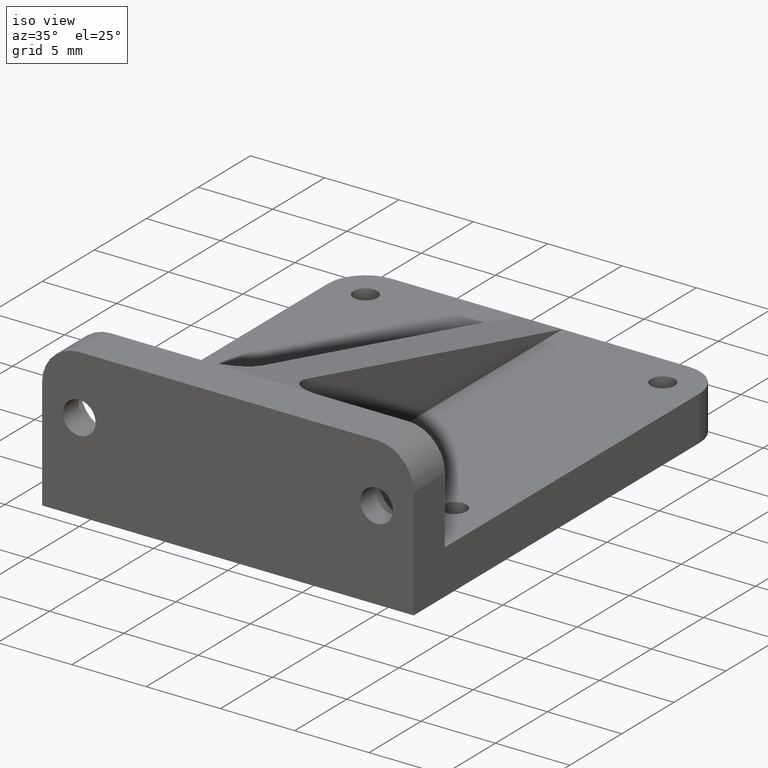
[diagram: clean part render]
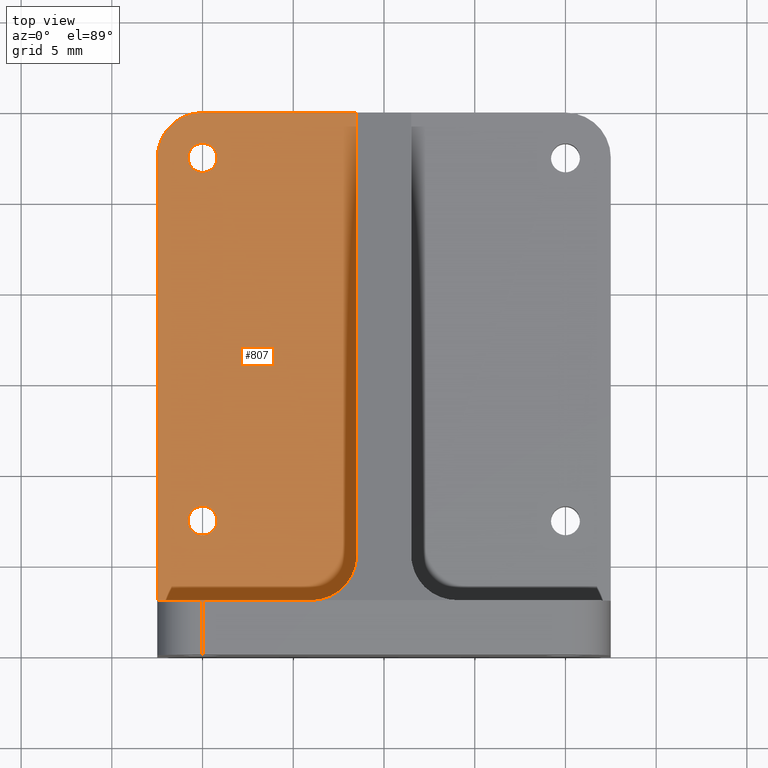
[diagram: tour spotlight — one face highlighted and labeled with its STEP entity id]
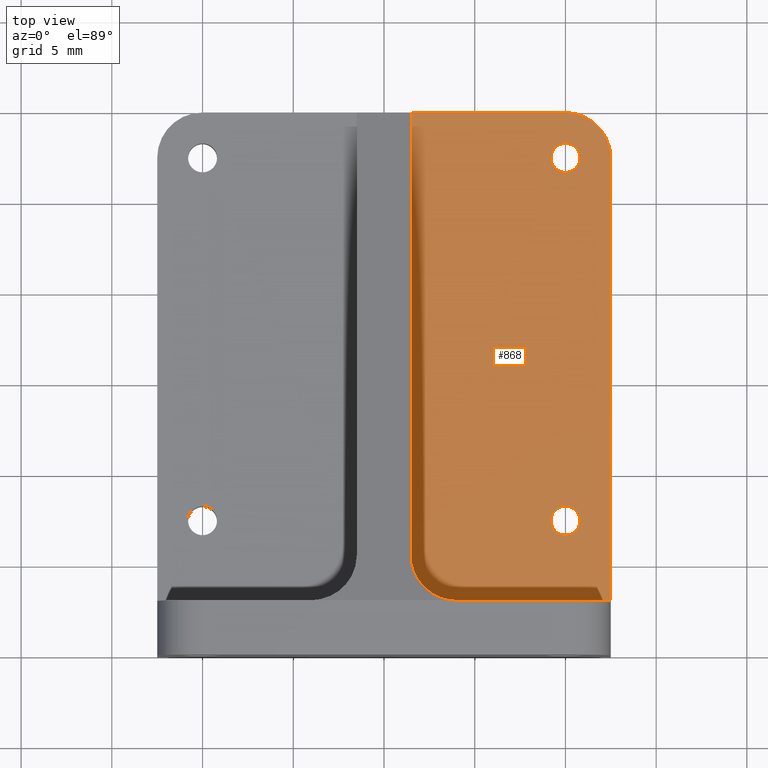
[diagram: tour spotlight — one face highlighted and labeled with its STEP entity id]
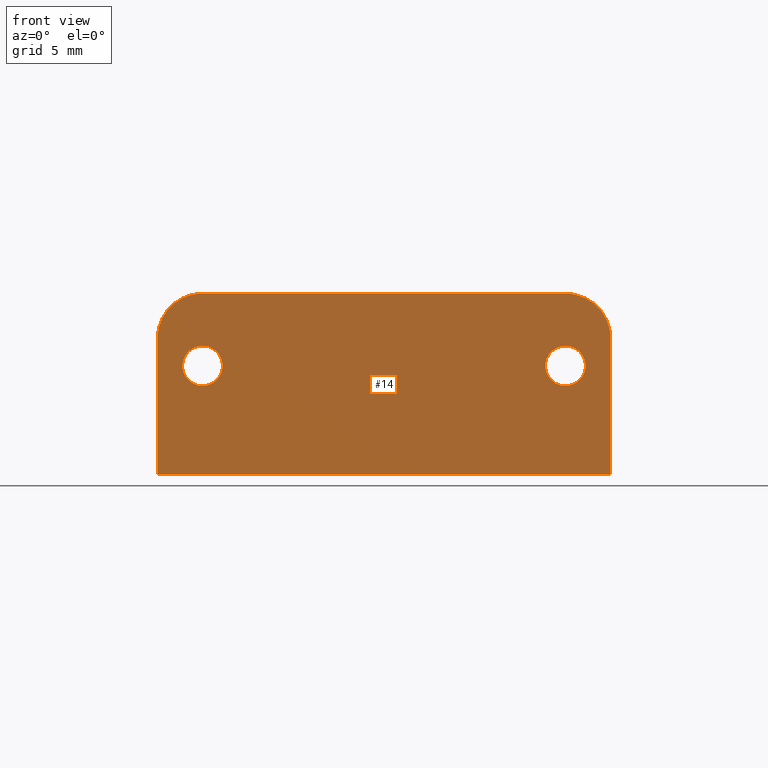
[diagram: tour spotlight — one face highlighted and labeled with its STEP entity id]
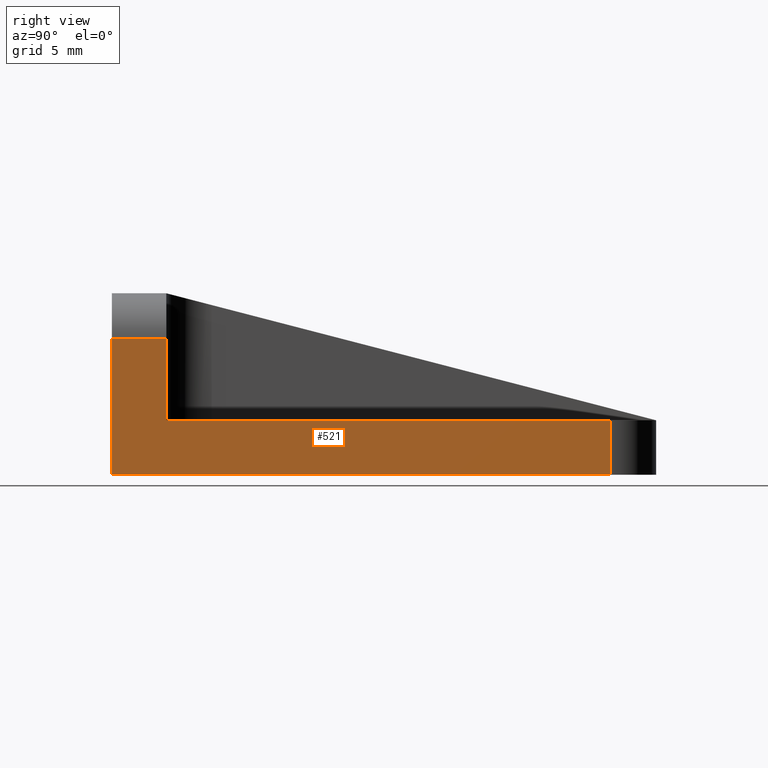
[diagram: tour spotlight — one face highlighted and labeled with its STEP entity id]
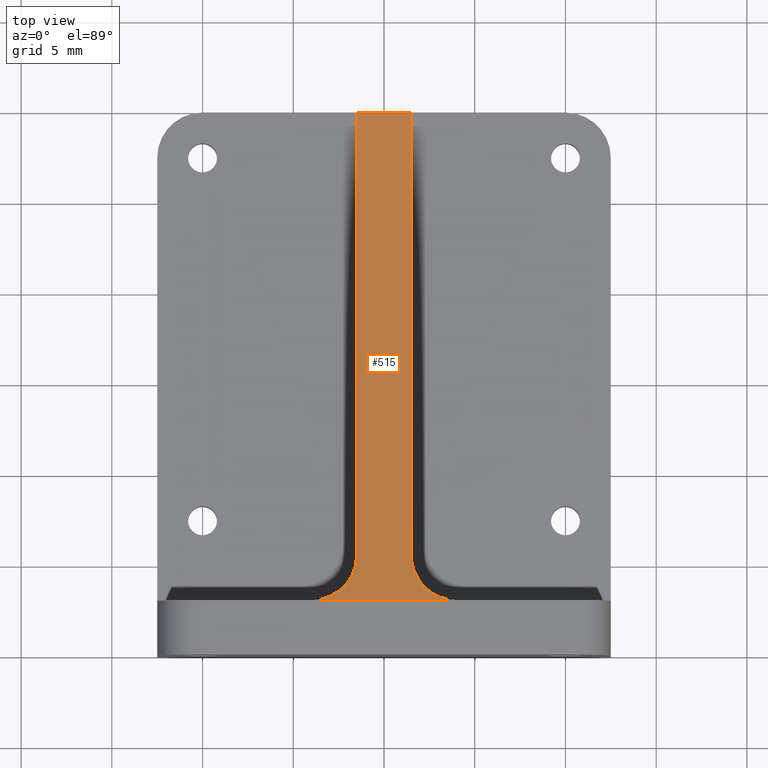
[diagram: tour spotlight — one face highlighted and labeled with its STEP entity id]
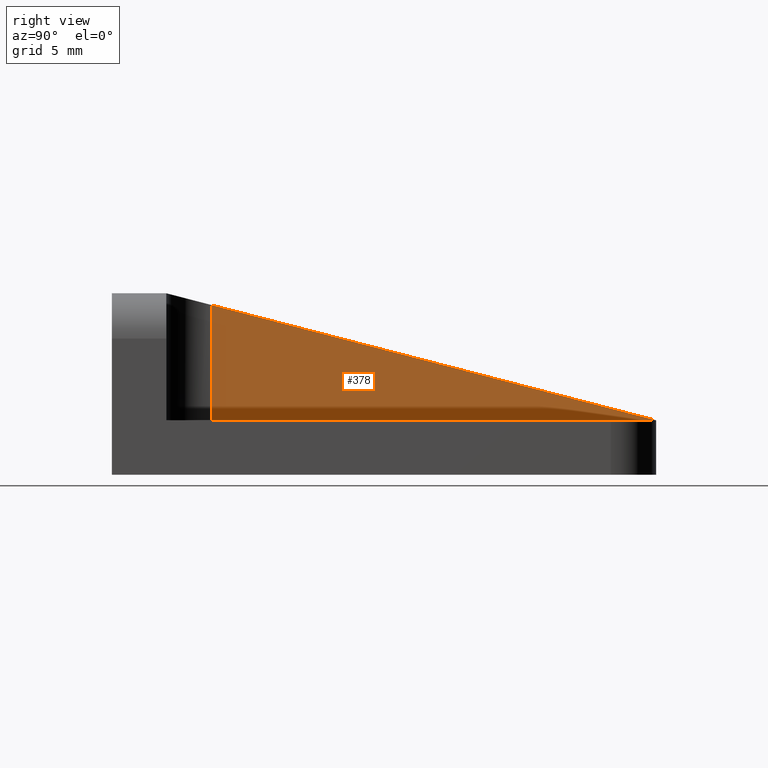
[diagram: tour spotlight — one face highlighted and labeled with its STEP entity id]
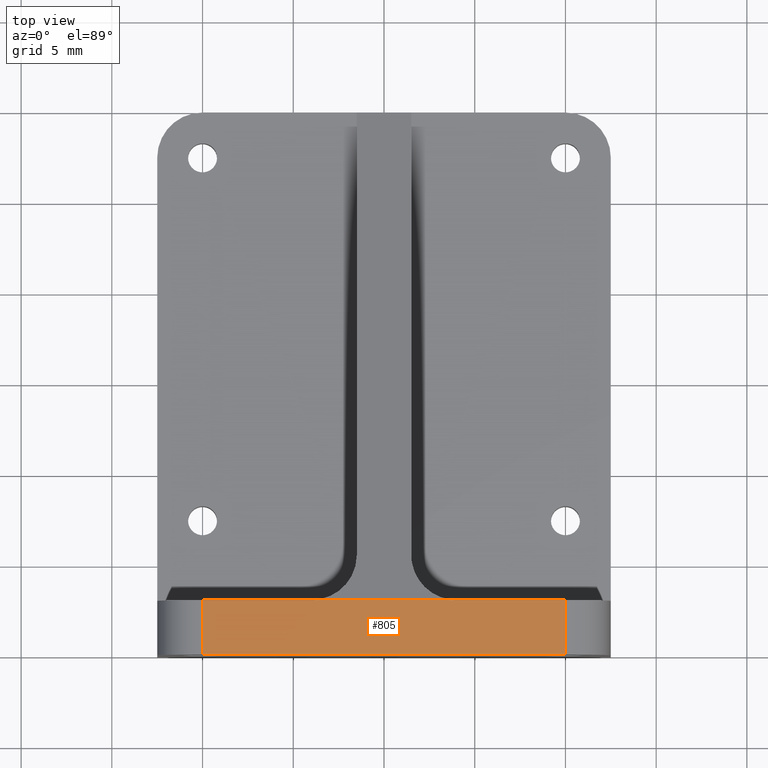
[diagram: tour spotlight — one face highlighted and labeled with its STEP entity id]
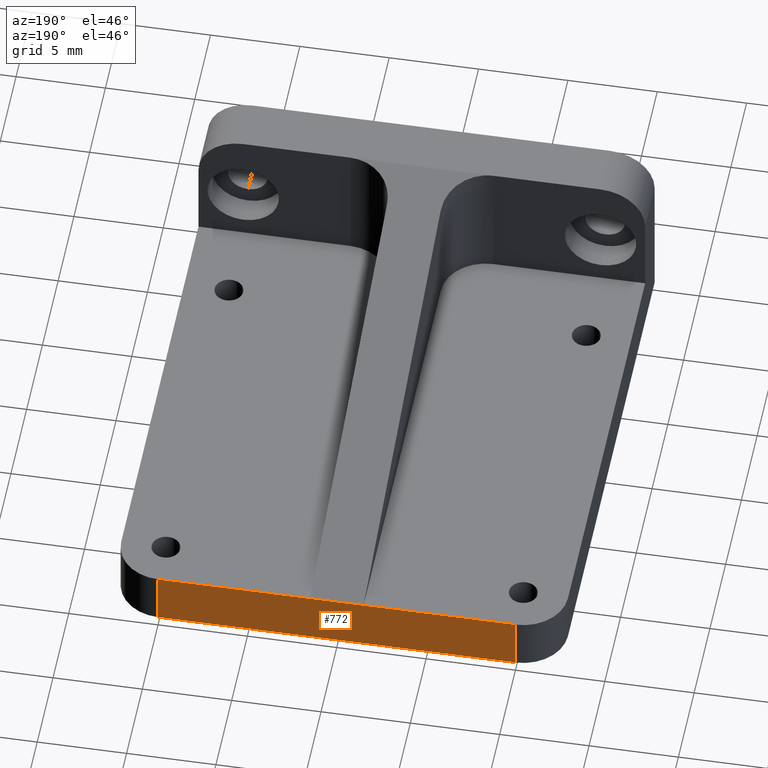
[diagram: tour spotlight — one face highlighted and labeled with its STEP entity id]
A machine part: a face-by-face anatomy tour. The part has 37 B-rep faces; the first image is the clean iso view, then the 8 largest visible faces are spotlighted one at a time (largest first), each with its STEP entity span.

Face 1 — top view, entity #807. In plain terms, the highlighted planar face has unit normal (0, 0, 1).
Definition (entity closure, byte-faithful):
#23 = CARTESIAN_POINT ( 'NONE',  ( -12.50000000000000000, 3.000000000000000000, 3.000000000000002665 ) ) ;
#26 = VECTOR ( 'NONE', #143, 1000.000000000000000 ) ;
#38 = CARTESIAN_POINT ( 'NONE',  ( -10.00000000000000000, 27.49999999999999645, 3.000000000000001332 ) ) ;
#111 = DIRECTION ( 'NONE',  ( 1.000000000000000000, 0.0000000000000000000, 0.0000000000000000000 ) ) ;
#128 = VERTEX_POINT ( 'NONE', #1005 ) ;
#129 = CARTESIAN_POINT ( 'NONE',  ( 12.50000000000000000, 0.0000000000000000000, 3.000000000000000000 ) ) ;
#132 = EDGE_CURVE ( 'NONE', #245, #944, #157, .T. ) ;
#143 = DIRECTION ( 'NONE',  ( 2.569960705150825398E-16, -1.000000000000000000, 0.0000000000000000000 ) ) ;
#157 = LINE ( 'NONE', #163, #26 ) ;
#163 = CARTESIAN_POINT ( 'NONE',  ( -1.499999999999997780, 3.000000000000000000, 3.000000000000002665 ) ) ;
#189 = EDGE_CURVE ( 'NONE', #128, #944, #1232, .T. ) ;
#191 = ORIENTED_EDGE ( 'NONE', *, *, #189, .T. ) ;
#202 = DIRECTION ( 'NONE',  ( -0.0000000000000000000, -0.0000000000000000000, 1.000000000000000000 ) ) ;
#205 = DIRECTION ( 'NONE',  ( -0.0000000000000000000, -0.0000000000000000000, 1.000000000000000000 ) ) ;
#206 = VERTEX_POINT ( 'NONE', #356 ) ;
#236 = CARTESIAN_POINT ( 'NONE',  ( -9.999999999999998224, 27.50000000000000000, 3.000000000000000000 ) ) ;
#237 = CARTESIAN_POINT ( 'NONE',  ( -10.79999999999998828, 7.499999999999996447, 3.000000000000001332 ) ) ;
#240 = VECTOR ( 'NONE', #857, 1000.000000000000000 ) ;
#244 = CARTESIAN_POINT ( 'NONE',  ( -1.500000000000004885, 30.00000000000000000, 3.000000000000002665 ) ) ;
#245 = VERTEX_POINT ( 'NONE', #244 ) ;
#251 = DIRECTION ( 'NONE',  ( 0.0000000000000000000, 0.0000000000000000000, 1.000000000000000000 ) ) ;
#253 = DIRECTION ( 'NONE',  ( 0.0000000000000000000, 0.0000000000000000000, 1.000000000000000000 ) ) ;
#304 = DIRECTION ( 'NONE',  ( 0.0000000000000000000, 1.000000000000000000, -0.0000000000000000000 ) ) ;
#311 = EDGE_LOOP ( 'NONE', ( #1093, #936, #461, #902, #191, #1140 ) ) ;
#356 = CARTESIAN_POINT ( 'NONE',  ( -9.999999999999998224, 30.00000000000000000, 3.000000000000002665 ) ) ;
#380 = VERTEX_POINT ( 'NONE', #776 ) ;
#388 = CIRCLE ( 'NONE', #608, 0.7999999999999882760 ) ;
#412 = VERTEX_POINT ( 'NONE', #613 ) ;
#425 = AXIS2_PLACEMENT_3D ( 'NONE', #236, #253, #819 ) ;
#434 = EDGE_CURVE ( 'NONE', #128, #380, #947, .T. ) ;
#436 = VERTEX_POINT ( 'NONE', #1239 ) ;
#438 = DIRECTION ( 'NONE',  ( 1.000000000000000000, 0.0000000000000000000, -0.0000000000000000000 ) ) ;
#443 = VERTEX_POINT ( 'NONE', #743 ) ;
#461 = ORIENTED_EDGE ( 'NONE', *, *, #676, .F. ) ;
#468 = VERTEX_POINT ( 'NONE', #576 ) ;
#478 = CARTESIAN_POINT ( 'NONE',  ( -12.50000000000000000, 3.000000000000000000, 3.000000000000002665 ) ) ;
#493 = AXIS2_PLACEMENT_3D ( 'NONE', #38, #603, #111 ) ;
#509 = LINE ( 'NONE', #798, #1094 ) ;
#512 = EDGE_CURVE ( 'NONE', #206, #436, #829, .T. ) ;
#529 = AXIS2_PLACEMENT_3D ( 'NONE', #1123, #251, #831 ) ;
#552 = FACE_OUTER_BOUND ( 'NONE', #311, .T. ) ;
#576 = CARTESIAN_POINT ( 'NONE',  ( -9.200000000000011724, 7.499999999999996447, 3.000000000000001332 ) ) ;
#585 = EDGE_CURVE ( 'NONE', #839, #468, #873, .T. ) ;
#594 = DIRECTION ( 'NONE',  ( 1.000000000000000000, 0.0000000000000000000, 0.0000000000000000000 ) ) ;
#603 = DIRECTION ( 'NONE',  ( -0.0000000000000000000, -0.0000000000000000000, 1.000000000000000000 ) ) ;
#608 = AXIS2_PLACEMENT_3D ( 'NONE', #973, #205, #594 ) ;
#613 = CARTESIAN_POINT ( 'NONE',  ( -9.200000000000011724, 27.49999999999999645, 3.000000000000001332 ) ) ;
#625 = AXIS2_PLACEMENT_3D ( 'NONE', #775, #202, #1173 ) ;
#636 = EDGE_CURVE ( 'NONE', #468, #839, #1167, .T. ) ;
#648 = EDGE_CURVE ( 'NONE', #412, #443, #788, .T. ) ;
#669 = ORIENTED_EDGE ( 'NONE', *, *, #585, .F. ) ;
#676 = EDGE_CURVE ( 'NONE', #380, #436, #1075, .T. ) ;
#682 = AXIS2_PLACEMENT_3D ( 'NONE', #989, #714, #1053 ) ;
#711 = PLANE ( 'NONE',  #1072 ) ;
#714 = DIRECTION ( 'NONE',  ( -0.0000000000000000000, -0.0000000000000000000, 1.000000000000000000 ) ) ;
#743 = CARTESIAN_POINT ( 'NONE',  ( -10.79999999999998828, 27.49999999999999645, 3.000000000000001332 ) ) ;
#761 = CARTESIAN_POINT ( 'NONE',  ( -1.499999999999998446, 5.500000000000000888, 3.000000000000002665 ) ) ;
#775 = CARTESIAN_POINT ( 'NONE',  ( -10.00000000000000000, 7.499999999999996447, 3.000000000000001332 ) ) ;
#776 = CARTESIAN_POINT ( 'NONE',  ( -12.50000000000000000, 3.000000000000000000, 3.000000000000002665 ) ) ;
#788 = CIRCLE ( 'NONE', #493, 0.7999999999999882760 ) ;
#798 = CARTESIAN_POINT ( 'NONE',  ( -12.50000000000000000, 30.00000000000000000, 3.000000000000002665 ) ) ;
#800 = ORIENTED_EDGE ( 'NONE', *, *, #636, .F. ) ;
#807 = ADVANCED_FACE ( 'NONE', ( #1100, #821, #552 ), #711, .T. ) ;
#819 = DIRECTION ( 'NONE',  ( 1.000000000000000000, 0.0000000000000000000, 0.0000000000000000000 ) ) ;
#821 = FACE_BOUND ( 'NONE', #1036, .T. ) ;
#829 = CIRCLE ( 'NONE', #425, 2.500000000000000444 ) ;
#831 = DIRECTION ( 'NONE',  ( 1.000000000000000000, 0.0000000000000000000, 0.0000000000000000000 ) ) ;
#839 = VERTEX_POINT ( 'NONE', #237 ) ;
#857 = DIRECTION ( 'NONE',  ( -1.000000000000000000, 0.0000000000000000000, 0.0000000000000000000 ) ) ;
#873 = CIRCLE ( 'NONE', #682, 0.7999999999999882760 ) ;
#902 = ORIENTED_EDGE ( 'NONE', *, *, #434, .F. ) ;
#931 = DIRECTION ( 'NONE',  ( 0.0000000000000000000, 0.0000000000000000000, 1.000000000000000000 ) ) ;
#936 = ORIENTED_EDGE ( 'NONE', *, *, #512, .T. ) ;
#944 = VERTEX_POINT ( 'NONE', #761 ) ;
#947 = LINE ( 'NONE', #478, #240 ) ;
#973 = CARTESIAN_POINT ( 'NONE',  ( -10.00000000000000000, 27.49999999999999645, 3.000000000000001332 ) ) ;
#983 = VECTOR ( 'NONE', #304, 1000.000000000000000 ) ;
#989 = CARTESIAN_POINT ( 'NONE',  ( -10.00000000000000000, 7.499999999999996447, 3.000000000000001332 ) ) ;
#996 = DIRECTION ( 'NONE',  ( 1.000000000000000000, 0.0000000000000000000, -0.0000000000000000000 ) ) ;
#1005 = CARTESIAN_POINT ( 'NONE',  ( -4.000000000000000000, 3.000000000000000000, 3.000000000000002665 ) ) ;
#1036 = EDGE_LOOP ( 'NONE', ( #800, #669 ) ) ;
#1053 = DIRECTION ( 'NONE',  ( 1.000000000000000000, 0.0000000000000000000, 0.0000000000000000000 ) ) ;
#1072 = AXIS2_PLACEMENT_3D ( 'NONE', #129, #931, #438 ) ;
#1075 = LINE ( 'NONE', #23, #983 ) ;
#1093 = ORIENTED_EDGE ( 'NONE', *, *, #1163, .F. ) ;
#1094 = VECTOR ( 'NONE', #996, 1000.000000000000000 ) ;
#1100 = FACE_BOUND ( 'NONE', #1242, .T. ) ;
#1116 = ORIENTED_EDGE ( 'NONE', *, *, #1161, .F. ) ;
#1123 = CARTESIAN_POINT ( 'NONE',  ( -3.999999999999999112, 5.500000000000000000, 3.000000000000002665 ) ) ;
#1140 = ORIENTED_EDGE ( 'NONE', *, *, #132, .F. ) ;
#1161 = EDGE_CURVE ( 'NONE', #443, #412, #388, .T. ) ;
#1163 = EDGE_CURVE ( 'NONE', #206, #245, #509, .T. ) ;
#1167 = CIRCLE ( 'NONE', #625, 0.7999999999999882760 ) ;
#1173 = DIRECTION ( 'NONE',  ( 1.000000000000000000, 0.0000000000000000000, 0.0000000000000000000 ) ) ;
#1181 = ORIENTED_EDGE ( 'NONE', *, *, #648, .F. ) ;
#1232 = CIRCLE ( 'NONE', #529, 2.500000000000000000 ) ;
#1239 = CARTESIAN_POINT ( 'NONE',  ( -12.50000000000000000, 27.50000000000000000, 3.000000000000002665 ) ) ;
#1242 = EDGE_LOOP ( 'NONE', ( #1181, #1116 ) ) ;

Face 2 — top view, entity #868. In plain terms, the highlighted planar face has unit normal (0, 0, 1).
Definition (entity closure, byte-faithful):
#12 = AXIS2_PLACEMENT_3D ( 'NONE', #959, #360, #489 ) ;
#18 = CARTESIAN_POINT ( 'NONE',  ( 1.500000000000004885, 30.00000000000000000, 3.000000000000002665 ) ) ;
#57 = CIRCLE ( 'NONE', #878, 2.500000000000000444 ) ;
#58 = ORIENTED_EDGE ( 'NONE', *, *, #1159, .F. ) ;
#67 = VECTOR ( 'NONE', #683, 1000.000000000000000 ) ;
#102 = CARTESIAN_POINT ( 'NONE',  ( 12.50000000000000000, 30.00000000000000000, 3.000000000000000000 ) ) ;
#118 = AXIS2_PLACEMENT_3D ( 'NONE', #342, #915, #1219 ) ;
#155 = ORIENTED_EDGE ( 'NONE', *, *, #768, .T. ) ;
#172 = ORIENTED_EDGE ( 'NONE', *, *, #500, .F. ) ;
#173 = CIRCLE ( 'NONE', #211, 0.7999999999999882760 ) ;
#204 = CARTESIAN_POINT ( 'NONE',  ( 1.500000000000004441, 3.000000000000000444, 3.000000000000002665 ) ) ;
#211 = AXIS2_PLACEMENT_3D ( 'NONE', #1204, #719, #1210 ) ;
#233 = CARTESIAN_POINT ( 'NONE',  ( 10.00000000000000000, 27.50000000000000000, 3.000000000000001332 ) ) ;
#234 = VECTOR ( 'NONE', #679, 1000.000000000000000 ) ;
#254 = VERTEX_POINT ( 'NONE', #561 ) ;
#259 = VERTEX_POINT ( 'NONE', #849 ) ;
#261 = CARTESIAN_POINT ( 'NONE',  ( 12.50000000000000000, 0.0000000000000000000, 3.000000000000000000 ) ) ;
#276 = ORIENTED_EDGE ( 'NONE', *, *, #823, .F. ) ;
#286 = CIRCLE ( 'NONE', #1153, 0.7999999999999882760 ) ;
#301 = LINE ( 'NONE', #204, #67 ) ;
#315 = EDGE_CURVE ( 'NONE', #393, #726, #421, .T. ) ;
#323 = DIRECTION ( 'NONE',  ( -0.0000000000000000000, -1.000000000000000000, 0.0000000000000000000 ) ) ;
#336 = CARTESIAN_POINT ( 'NONE',  ( 10.00000000000000000, 27.50000000000000000, 3.000000000000000000 ) ) ;
#342 = CARTESIAN_POINT ( 'NONE',  ( 10.00000000000000711, 7.499999999999999112, 3.000000000000001332 ) ) ;
#360 = DIRECTION ( 'NONE',  ( 0.0000000000000000000, 0.0000000000000000000, 1.000000000000000000 ) ) ;
#363 = EDGE_CURVE ( 'NONE', #254, #1137, #301, .T. ) ;
#364 = ORIENTED_EDGE ( 'NONE', *, *, #1230, .F. ) ;
#366 = FACE_BOUND ( 'NONE', #863, .T. ) ;
#368 = EDGE_CURVE ( 'NONE', #1201, #1220, #1085, .T. ) ;
#372 = VERTEX_POINT ( 'NONE', #1002 ) ;
#393 = VERTEX_POINT ( 'NONE', #688 ) ;
#419 = ORIENTED_EDGE ( 'NONE', *, *, #1052, .T. ) ;
#420 = AXIS2_PLACEMENT_3D ( 'NONE', #261, #1231, #462 ) ;
#421 = LINE ( 'NONE', #1164, #981 ) ;
#441 = CARTESIAN_POINT ( 'NONE',  ( 10.79999999999998828, 27.50000000000000000, 3.000000000000001332 ) ) ;
#444 = DIRECTION ( 'NONE',  ( 1.000000000000000000, 0.0000000000000000000, 0.0000000000000000000 ) ) ;
#462 = DIRECTION ( 'NONE',  ( 1.000000000000000000, 0.0000000000000000000, -0.0000000000000000000 ) ) ;
#483 = ORIENTED_EDGE ( 'NONE', *, *, #363, .F. ) ;
#484 = FACE_BOUND ( 'NONE', #557, .T. ) ;
#489 = DIRECTION ( 'NONE',  ( 1.000000000000000000, 0.0000000000000000000, 0.0000000000000000000 ) ) ;
#500 = EDGE_CURVE ( 'NONE', #259, #1225, #508, .T. ) ;
#501 = CARTESIAN_POINT ( 'NONE',  ( 10.00000000000000000, 30.00000000000000000, 3.000000000000000000 ) ) ;
#504 = CARTESIAN_POINT ( 'NONE',  ( 10.00000000000000000, 27.50000000000000000, 3.000000000000001332 ) ) ;
#508 = CIRCLE ( 'NONE', #118, 0.7999999999999882760 ) ;
#525 = EDGE_LOOP ( 'NONE', ( #1049, #155, #419, #483, #1208, #364 ) ) ;
#526 = EDGE_CURVE ( 'NONE', #254, #372, #1152, .T. ) ;
#530 = CARTESIAN_POINT ( 'NONE',  ( 10.79999999999999538, 7.499999999999999112, 3.000000000000001332 ) ) ;
#557 = EDGE_LOOP ( 'NONE', ( #844, #58 ) ) ;
#561 = CARTESIAN_POINT ( 'NONE',  ( 1.500000000000004441, 5.500000000000000000, 3.000000000000002665 ) ) ;
#587 = DIRECTION ( 'NONE',  ( 1.000000000000000000, 0.0000000000000000000, 0.0000000000000000000 ) ) ;
#621 = DIRECTION ( 'NONE',  ( 1.000000000000000000, 0.0000000000000000000, 0.0000000000000000000 ) ) ;
#624 = CARTESIAN_POINT ( 'NONE',  ( 12.50000000000000000, 3.000000000000000000, 3.000000000000000000 ) ) ;
#679 = DIRECTION ( 'NONE',  ( -1.000000000000000000, -0.0000000000000000000, -0.0000000000000000000 ) ) ;
#683 = DIRECTION ( 'NONE',  ( 1.606225440719265874E-17, 1.000000000000000000, -0.0000000000000000000 ) ) ;
#688 = CARTESIAN_POINT ( 'NONE',  ( 12.50000000000000000, 27.50000000000000000, 3.000000000000002665 ) ) ;
#719 = DIRECTION ( 'NONE',  ( -0.0000000000000000000, -0.0000000000000000000, 1.000000000000000000 ) ) ;
#726 = VERTEX_POINT ( 'NONE', #624 ) ;
#734 = DIRECTION ( 'NONE',  ( 0.0000000000000000000, 0.0000000000000000000, 1.000000000000000000 ) ) ;
#740 = VECTOR ( 'NONE', #1217, 1000.000000000000000 ) ;
#768 = EDGE_CURVE ( 'NONE', #393, #1040, #57, .T. ) ;
#804 = AXIS2_PLACEMENT_3D ( 'NONE', #233, #1110, #621 ) ;
#823 = EDGE_CURVE ( 'NONE', #1225, #259, #173, .T. ) ;
#844 = ORIENTED_EDGE ( 'NONE', *, *, #368, .F. ) ;
#849 = CARTESIAN_POINT ( 'NONE',  ( 9.200000000000018829, 7.499999999999999112, 3.000000000000001332 ) ) ;
#863 = EDGE_LOOP ( 'NONE', ( #276, #172 ) ) ;
#868 = ADVANCED_FACE ( 'NONE', ( #366, #484, #1030 ), #1038, .T. ) ;
#878 = AXIS2_PLACEMENT_3D ( 'NONE', #336, #734, #444 ) ;
#883 = DIRECTION ( 'NONE',  ( -0.0000000000000000000, -0.0000000000000000000, 1.000000000000000000 ) ) ;
#907 = CARTESIAN_POINT ( 'NONE',  ( 12.50000000000000000, 3.000000000000000000, 3.000000000000002665 ) ) ;
#915 = DIRECTION ( 'NONE',  ( -0.0000000000000000000, -0.0000000000000000000, 1.000000000000000000 ) ) ;
#959 = CARTESIAN_POINT ( 'NONE',  ( 4.000000000000003553, 5.500000000000000000, 3.000000000000002665 ) ) ;
#981 = VECTOR ( 'NONE', #323, 1000.000000000000000 ) ;
#1002 = CARTESIAN_POINT ( 'NONE',  ( 4.000000000000003553, 3.000000000000000444, 3.000000000000002665 ) ) ;
#1030 = FACE_OUTER_BOUND ( 'NONE', #525, .T. ) ;
#1038 = PLANE ( 'NONE',  #420 ) ;
#1040 = VERTEX_POINT ( 'NONE', #501 ) ;
#1049 = ORIENTED_EDGE ( 'NONE', *, *, #315, .F. ) ;
#1052 = EDGE_CURVE ( 'NONE', #1040, #1137, #1157, .T. ) ;
#1085 = CIRCLE ( 'NONE', #804, 0.7999999999999882760 ) ;
#1096 = CARTESIAN_POINT ( 'NONE',  ( 9.200000000000011724, 27.50000000000000000, 3.000000000000001332 ) ) ;
#1110 = DIRECTION ( 'NONE',  ( -0.0000000000000000000, -0.0000000000000000000, 1.000000000000000000 ) ) ;
#1137 = VERTEX_POINT ( 'NONE', #18 ) ;
#1152 = CIRCLE ( 'NONE', #12, 2.500000000000000444 ) ;
#1153 = AXIS2_PLACEMENT_3D ( 'NONE', #504, #883, #587 ) ;
#1157 = LINE ( 'NONE', #102, #234 ) ;
#1159 = EDGE_CURVE ( 'NONE', #1220, #1201, #286, .T. ) ;
#1164 = CARTESIAN_POINT ( 'NONE',  ( 12.50000000000000000, 3.000000000000000000, 3.000000000000002665 ) ) ;
#1193 = LINE ( 'NONE', #907, #740 ) ;
#1201 = VERTEX_POINT ( 'NONE', #441 ) ;
#1204 = CARTESIAN_POINT ( 'NONE',  ( 10.00000000000000711, 7.499999999999999112, 3.000000000000001332 ) ) ;
#1208 = ORIENTED_EDGE ( 'NONE', *, *, #526, .T. ) ;
#1210 = DIRECTION ( 'NONE',  ( 1.000000000000000000, 0.0000000000000000000, 0.0000000000000000000 ) ) ;
#1217 = DIRECTION ( 'NONE',  ( -1.000000000000000000, 3.942553354492745133E-17, 0.0000000000000000000 ) ) ;
#1219 = DIRECTION ( 'NONE',  ( 1.000000000000000000, 0.0000000000000000000, 0.0000000000000000000 ) ) ;
#1220 = VERTEX_POINT ( 'NONE', #1096 ) ;
#1225 = VERTEX_POINT ( 'NONE', #530 ) ;
#1230 = EDGE_CURVE ( 'NONE', #726, #372, #1193, .T. ) ;
#1231 = DIRECTION ( 'NONE',  ( 0.0000000000000000000, 0.0000000000000000000, 1.000000000000000000 ) ) ;

Face 3 — front view, entity #14. In plain terms, the highlighted planar face has unit normal (0, 1, 0).
Definition (entity closure, byte-faithful):
#13 = VECTOR ( 'NONE', #796, 1000.000000000000000 ) ;
#14 = ADVANCED_FACE ( 'NONE', ( #1190, #1087, #581 ), #487, .F. ) ;
#15 = VERTEX_POINT ( 'NONE', #605 ) ;
#24 = VERTEX_POINT ( 'NONE', #546 ) ;
#25 = CARTESIAN_POINT ( 'NONE',  ( -10.00000000000000000, 0.0000000000000000000, 6.000000000000000000 ) ) ;
#51 = ORIENTED_EDGE ( 'NONE', *, *, #869, .T. ) ;
#65 = DIRECTION ( 'NONE',  ( 0.0000000000000000000, 0.0000000000000000000, 1.000000000000000000 ) ) ;
#72 = DIRECTION ( 'NONE',  ( -0.0000000000000000000, -1.000000000000000000, -0.0000000000000000000 ) ) ;
#108 = CIRCLE ( 'NONE', #229, 2.500000000000000444 ) ;
#110 = DIRECTION ( 'NONE',  ( 0.0000000000000000000, 0.0000000000000000000, 1.000000000000000000 ) ) ;
#145 = VERTEX_POINT ( 'NONE', #1035 ) ;
#152 = DIRECTION ( 'NONE',  ( 0.0000000000000000000, 0.0000000000000000000, 1.000000000000000000 ) ) ;
#162 = AXIS2_PLACEMENT_3D ( 'NONE', #1070, #881, #305 ) ;
#186 = CARTESIAN_POINT ( 'NONE',  ( -10.00000000000000000, 0.0000000000000000000, 6.000000000000000000 ) ) ;
#188 = AXIS2_PLACEMENT_3D ( 'NONE', #453, #524, #910 ) ;
#207 = CARTESIAN_POINT ( 'NONE',  ( 12.50000000000000000, 0.0000000000000000000, 7.500000000000000000 ) ) ;
#217 = AXIS2_PLACEMENT_3D ( 'NONE', #186, #872, #841 ) ;
#229 = AXIS2_PLACEMENT_3D ( 'NONE', #320, #72, #65 ) ;
#238 = VECTOR ( 'NONE', #643, 1000.000000000000000 ) ;
#243 = EDGE_CURVE ( 'NONE', #982, #1129, #717, .T. ) ;
#288 = ORIENTED_EDGE ( 'NONE', *, *, #1151, .T. ) ;
#295 = LINE ( 'NONE', #591, #13 ) ;
#305 = DIRECTION ( 'NONE',  ( 0.0000000000000000000, 0.0000000000000000000, 1.000000000000000000 ) ) ;
#313 = CARTESIAN_POINT ( 'NONE',  ( 10.00000000000000000, 0.0000000000000000000, 7.500000000000000000 ) ) ;
#320 = CARTESIAN_POINT ( 'NONE',  ( -9.999999999999998224, 0.0000000000000000000, 7.500000000000000000 ) ) ;
#334 = ORIENTED_EDGE ( 'NONE', *, *, #732, .T. ) ;
#373 = ORIENTED_EDGE ( 'NONE', *, *, #243, .T. ) ;
#387 = EDGE_CURVE ( 'NONE', #145, #430, #1003, .T. ) ;
#392 = CARTESIAN_POINT ( 'NONE',  ( 12.50000000000000000, 0.0000000000000000000, 0.0000000000000000000 ) ) ;
#400 = AXIS2_PLACEMENT_3D ( 'NONE', #25, #675, #110 ) ;
#403 = LINE ( 'NONE', #392, #573 ) ;
#409 = CIRCLE ( 'NONE', #188, 1.099999999999999423 ) ;
#418 = VERTEX_POINT ( 'NONE', #1009 ) ;
#430 = VERTEX_POINT ( 'NONE', #1016 ) ;
#453 = CARTESIAN_POINT ( 'NONE',  ( 10.00000000000000000, 0.0000000000000000000, 5.999999999999997335 ) ) ;
#487 = PLANE ( 'NONE',  #905 ) ;
#495 = EDGE_LOOP ( 'NONE', ( #904, #334 ) ) ;
#517 = ORIENTED_EDGE ( 'NONE', *, *, #686, .F. ) ;
#524 = DIRECTION ( 'NONE',  ( 0.0000000000000000000, 1.000000000000000000, 0.0000000000000000000 ) ) ;
#546 = CARTESIAN_POINT ( 'NONE',  ( -12.50000000000000000, 0.0000000000000000000, 0.0000000000000000000 ) ) ;
#547 = VECTOR ( 'NONE', #958, 1000.000000000000000 ) ;
#553 = EDGE_CURVE ( 'NONE', #616, #418, #1063, .T. ) ;
#562 = ORIENTED_EDGE ( 'NONE', *, *, #553, .T. ) ;
#564 = LINE ( 'NONE', #1238, #547 ) ;
#573 = VECTOR ( 'NONE', #889, 1000.000000000000000 ) ;
#581 = FACE_OUTER_BOUND ( 'NONE', #1029, .T. ) ;
#591 = CARTESIAN_POINT ( 'NONE',  ( 12.50000000000000000, 0.0000000000000000000, 0.0000000000000000000 ) ) ;
#597 = DIRECTION ( 'NONE',  ( 0.0000000000000000000, 1.000000000000000000, 0.0000000000000000000 ) ) ;
#605 = CARTESIAN_POINT ( 'NONE',  ( 12.50000000000000000, 0.0000000000000000000, 0.0000000000000000000 ) ) ;
#616 = VERTEX_POINT ( 'NONE', #1069 ) ;
#643 = DIRECTION ( 'NONE',  ( -1.000000000000000000, -0.0000000000000000000, -0.0000000000000000000 ) ) ;
#645 = VERTEX_POINT ( 'NONE', #884 ) ;
#661 = VERTEX_POINT ( 'NONE', #207 ) ;
#667 = EDGE_CURVE ( 'NONE', #661, #15, #403, .T. ) ;
#675 = DIRECTION ( 'NONE',  ( 0.0000000000000000000, 1.000000000000000000, 0.0000000000000000000 ) ) ;
#686 = EDGE_CURVE ( 'NONE', #15, #24, #295, .T. ) ;
#698 = DIRECTION ( 'NONE',  ( -0.0000000000000000000, -1.000000000000000000, -0.0000000000000000000 ) ) ;
#710 = EDGE_CURVE ( 'NONE', #661, #982, #1155, .T. ) ;
#717 = LINE ( 'NONE', #1104, #238 ) ;
#732 = EDGE_CURVE ( 'NONE', #430, #145, #409, .T. ) ;
#750 = EDGE_CURVE ( 'NONE', #1129, #645, #108, .T. ) ;
#766 = AXIS2_PLACEMENT_3D ( 'NONE', #313, #698, #152 ) ;
#796 = DIRECTION ( 'NONE',  ( -1.000000000000000000, -0.0000000000000000000, -0.0000000000000000000 ) ) ;
#809 = ORIENTED_EDGE ( 'NONE', *, *, #710, .T. ) ;
#841 = DIRECTION ( 'NONE',  ( 0.0000000000000000000, 0.0000000000000000000, 1.000000000000000000 ) ) ;
#869 = EDGE_CURVE ( 'NONE', #645, #24, #564, .T. ) ;
#870 = DIRECTION ( 'NONE',  ( 0.0000000000000000000, -0.0000000000000000000, 1.000000000000000000 ) ) ;
#872 = DIRECTION ( 'NONE',  ( 0.0000000000000000000, 1.000000000000000000, 0.0000000000000000000 ) ) ;
#881 = DIRECTION ( 'NONE',  ( 0.0000000000000000000, 1.000000000000000000, 0.0000000000000000000 ) ) ;
#884 = CARTESIAN_POINT ( 'NONE',  ( -12.50000000000000000, 0.0000000000000000000, 7.500000000000000000 ) ) ;
#889 = DIRECTION ( 'NONE',  ( -0.0000000000000000000, -0.0000000000000000000, -1.000000000000000000 ) ) ;
#904 = ORIENTED_EDGE ( 'NONE', *, *, #387, .T. ) ;
#905 = AXIS2_PLACEMENT_3D ( 'NONE', #1056, #597, #870 ) ;
#910 = DIRECTION ( 'NONE',  ( 0.0000000000000000000, 0.0000000000000000000, 1.000000000000000000 ) ) ;
#928 = EDGE_LOOP ( 'NONE', ( #288, #562 ) ) ;
#958 = DIRECTION ( 'NONE',  ( -0.0000000000000000000, -0.0000000000000000000, -1.000000000000000000 ) ) ;
#970 = CIRCLE ( 'NONE', #400, 1.099999999999999423 ) ;
#976 = CARTESIAN_POINT ( 'NONE',  ( -9.999999999999998224, 0.0000000000000000000, 10.00000000000000000 ) ) ;
#982 = VERTEX_POINT ( 'NONE', #1146 ) ;
#1003 = CIRCLE ( 'NONE', #162, 1.099999999999999423 ) ;
#1009 = CARTESIAN_POINT ( 'NONE',  ( -10.00000000000000000, 0.0000000000000000000, 7.099999999999999645 ) ) ;
#1016 = CARTESIAN_POINT ( 'NONE',  ( 10.00000000000000000, 0.0000000000000000000, 4.899999999999997691 ) ) ;
#1018 = ORIENTED_EDGE ( 'NONE', *, *, #667, .F. ) ;
#1029 = EDGE_LOOP ( 'NONE', ( #1018, #809, #373, #1077, #51, #517 ) ) ;
#1035 = CARTESIAN_POINT ( 'NONE',  ( 10.00000000000000000, 0.0000000000000000000, 7.099999999999996980 ) ) ;
#1056 = CARTESIAN_POINT ( 'NONE',  ( 12.50000000000000000, 0.0000000000000000000, 0.0000000000000000000 ) ) ;
#1063 = CIRCLE ( 'NONE', #217, 1.099999999999999423 ) ;
#1069 = CARTESIAN_POINT ( 'NONE',  ( -10.00000000000000000, 0.0000000000000000000, 4.900000000000000355 ) ) ;
#1070 = CARTESIAN_POINT ( 'NONE',  ( 10.00000000000000000, 0.0000000000000000000, 5.999999999999997335 ) ) ;
#1077 = ORIENTED_EDGE ( 'NONE', *, *, #750, .T. ) ;
#1087 = FACE_BOUND ( 'NONE', #495, .T. ) ;
#1104 = CARTESIAN_POINT ( 'NONE',  ( 12.50000000000000000, 0.0000000000000000000, 10.00000000000000000 ) ) ;
#1129 = VERTEX_POINT ( 'NONE', #976 ) ;
#1146 = CARTESIAN_POINT ( 'NONE',  ( 10.00000000000000000, 0.0000000000000000000, 10.00000000000000000 ) ) ;
#1151 = EDGE_CURVE ( 'NONE', #418, #616, #970, .T. ) ;
#1155 = CIRCLE ( 'NONE', #766, 2.500000000000000444 ) ;
#1190 = FACE_BOUND ( 'NONE', #928, .T. ) ;
#1238 = CARTESIAN_POINT ( 'NONE',  ( -12.50000000000000000, 0.0000000000000000000, 0.0000000000000000000 ) ) ;

Face 4 — right view, entity #521. In plain terms, the highlighted planar face has unit normal (-1, 0, 0).
Definition (entity closure, byte-faithful):
#4 = ORIENTED_EDGE ( 'NONE', *, *, #1083, .T. ) ;
#15 = VERTEX_POINT ( 'NONE', #605 ) ;
#64 = ORIENTED_EDGE ( 'NONE', *, *, #315, .T. ) ;
#207 = CARTESIAN_POINT ( 'NONE',  ( 12.50000000000000000, 0.0000000000000000000, 7.500000000000000000 ) ) ;
#285 = AXIS2_PLACEMENT_3D ( 'NONE', #1211, #1119, #571 ) ;
#315 = EDGE_CURVE ( 'NONE', #393, #726, #421, .T. ) ;
#323 = DIRECTION ( 'NONE',  ( -0.0000000000000000000, -1.000000000000000000, 0.0000000000000000000 ) ) ;
#333 = CARTESIAN_POINT ( 'NONE',  ( 12.50000000000000000, 3.000000000000000000, -29.15475947422650904 ) ) ;
#361 = VECTOR ( 'NONE', #1045, 1000.000000000000000 ) ;
#392 = CARTESIAN_POINT ( 'NONE',  ( 12.50000000000000000, 0.0000000000000000000, 0.0000000000000000000 ) ) ;
#393 = VERTEX_POINT ( 'NONE', #688 ) ;
#403 = LINE ( 'NONE', #392, #573 ) ;
#421 = LINE ( 'NONE', #1164, #981 ) ;
#445 = FACE_OUTER_BOUND ( 'NONE', #691, .T. ) ;
#496 = LINE ( 'NONE', #1068, #528 ) ;
#499 = EDGE_CURVE ( 'NONE', #726, #602, #781, .T. ) ;
#521 = ADVANCED_FACE ( 'NONE', ( #445 ), #1133, .F. ) ;
#528 = VECTOR ( 'NONE', #979, 1000.000000000000000 ) ;
#571 = DIRECTION ( 'NONE',  ( 0.0000000000000000000, 0.0000000000000000000, 1.000000000000000000 ) ) ;
#573 = VECTOR ( 'NONE', #889, 1000.000000000000000 ) ;
#602 = VERTEX_POINT ( 'NONE', #1062 ) ;
#605 = CARTESIAN_POINT ( 'NONE',  ( 12.50000000000000000, 0.0000000000000000000, 0.0000000000000000000 ) ) ;
#624 = CARTESIAN_POINT ( 'NONE',  ( 12.50000000000000000, 3.000000000000000000, 3.000000000000000000 ) ) ;
#659 = CARTESIAN_POINT ( 'NONE',  ( 12.50000000000000000, 27.50000000000000000, 0.0000000000000000000 ) ) ;
#661 = VERTEX_POINT ( 'NONE', #207 ) ;
#666 = VECTOR ( 'NONE', #833, 1000.000000000000000 ) ;
#667 = EDGE_CURVE ( 'NONE', #661, #15, #403, .T. ) ;
#688 = CARTESIAN_POINT ( 'NONE',  ( 12.50000000000000000, 27.50000000000000000, 3.000000000000002665 ) ) ;
#691 = EDGE_LOOP ( 'NONE', ( #1066, #4, #835, #1191, #851, #64 ) ) ;
#726 = VERTEX_POINT ( 'NONE', #624 ) ;
#770 = EDGE_CURVE ( 'NONE', #15, #832, #922, .T. ) ;
#781 = LINE ( 'NONE', #333, #666 ) ;
#801 = CARTESIAN_POINT ( 'NONE',  ( 12.50000000000000000, 0.0000000000000000000, 0.0000000000000000000 ) ) ;
#832 = VERTEX_POINT ( 'NONE', #1106 ) ;
#833 = DIRECTION ( 'NONE',  ( -0.0000000000000000000, -0.0000000000000000000, 1.000000000000000000 ) ) ;
#835 = ORIENTED_EDGE ( 'NONE', *, *, #667, .T. ) ;
#840 = LINE ( 'NONE', #659, #361 ) ;
#851 = ORIENTED_EDGE ( 'NONE', *, *, #877, .T. ) ;
#877 = EDGE_CURVE ( 'NONE', #832, #393, #840, .T. ) ;
#889 = DIRECTION ( 'NONE',  ( -0.0000000000000000000, -0.0000000000000000000, -1.000000000000000000 ) ) ;
#922 = LINE ( 'NONE', #801, #1202 ) ;
#979 = DIRECTION ( 'NONE',  ( 0.0000000000000000000, -1.000000000000000000, 0.0000000000000000000 ) ) ;
#981 = VECTOR ( 'NONE', #323, 1000.000000000000000 ) ;
#1045 = DIRECTION ( 'NONE',  ( 0.0000000000000000000, 0.0000000000000000000, 1.000000000000000000 ) ) ;
#1062 = CARTESIAN_POINT ( 'NONE',  ( 12.50000000000000000, 3.000000000000000000, 7.500000000000000000 ) ) ;
#1066 = ORIENTED_EDGE ( 'NONE', *, *, #499, .T. ) ;
#1068 = CARTESIAN_POINT ( 'NONE',  ( 12.50000000000000000, 0.0000000000000000000, 7.500000000000000000 ) ) ;
#1083 = EDGE_CURVE ( 'NONE', #602, #661, #496, .T. ) ;
#1091 = DIRECTION ( 'NONE',  ( 0.0000000000000000000, 1.000000000000000000, 0.0000000000000000000 ) ) ;
#1106 = CARTESIAN_POINT ( 'NONE',  ( 12.50000000000000000, 27.50000000000000000, 0.0000000000000000000 ) ) ;
#1119 = DIRECTION ( 'NONE',  ( -1.000000000000000000, 0.0000000000000000000, 0.0000000000000000000 ) ) ;
#1133 = PLANE ( 'NONE',  #285 ) ;
#1164 = CARTESIAN_POINT ( 'NONE',  ( 12.50000000000000000, 3.000000000000000000, 3.000000000000002665 ) ) ;
#1191 = ORIENTED_EDGE ( 'NONE', *, *, #770, .T. ) ;
#1202 = VECTOR ( 'NONE', #1091, 1000.000000000000000 ) ;
#1211 = CARTESIAN_POINT ( 'NONE',  ( 12.50000000000000000, 0.0000000000000000000, 0.0000000000000000000 ) ) ;

Face 5 — top view, entity #515. In plain terms, the highlighted planar face has unit normal (0, -0.251, -0.968).
Definition (entity closure, byte-faithful):
#9 = ORIENTED_EDGE ( 'NONE', *, *, #273, .T. ) ;
#17 = CARTESIAN_POINT ( 'NONE',  ( 4.000000000000003553, 3.000000000000000000, 10.00000000000000000 ) ) ;
#18 = CARTESIAN_POINT ( 'NONE',  ( 1.500000000000004885, 30.00000000000000000, 3.000000000000002665 ) ) ;
#22 = CARTESIAN_POINT ( 'NONE',  ( 12.50000000000000000, 3.000000000000000000, 10.00000000000000000 ) ) ;
#29 = ORIENTED_EDGE ( 'NONE', *, *, #1128, .T. ) ;
#71 = ORIENTED_EDGE ( 'NONE', *, *, #1099, .F. ) ;
#78 = CARTESIAN_POINT ( 'NONE',  ( 1.500000000000004885, 30.00000000000000000, 3.000000000000000000 ) ) ;
#105 = CARTESIAN_POINT ( 'NONE',  ( -4.000000000000000000, 3.000000000000000000, 10.00000000000000000 ) ) ;
#114 = VECTOR ( 'NONE', #1241, 1000.000000000000000 ) ;
#115 = DIRECTION ( 'NONE',  ( -1.000000000000000000, -0.0000000000000000000, -0.0000000000000000000 ) ) ;
#125 = CARTESIAN_POINT ( 'NONE',  ( -1.500000000000003775, 4.035533905932732424, 9.731528246610036348 ) ) ;
#171 = LINE ( 'NONE', #78, #722 ) ;
#200 = CARTESIAN_POINT ( 'NONE',  ( -1.499999999999998446, 5.499999999999991118, 9.351851851851854747 ) ) ;
#201 = CARTESIAN_POINT ( 'NONE',  ( 2.535533905932746634, 2.999999999999999112, 10.00000000000000355 ) ) ;
#220 = CARTESIAN_POINT ( 'NONE',  ( -1.500000000000004885, 29.99999999999999645, 3.000000000000000888 ) ) ;
#244 = CARTESIAN_POINT ( 'NONE',  ( -1.500000000000004885, 30.00000000000000000, 3.000000000000002665 ) ) ;
#245 = VERTEX_POINT ( 'NONE', #244 ) ;
#270 = DIRECTION ( 'NONE',  ( 0.0000000000000000000, 0.9679968981658009231, -0.2509621587837261303 ) ) ;
#272 = CARTESIAN_POINT ( 'NONE',  ( 1.500000000000004441, 5.499999999999987566, 9.351851851851854747 ) ) ;
#273 = EDGE_CURVE ( 'NONE', #1137, #245, #754, .T. ) ;
#317 = EDGE_CURVE ( 'NONE', #245, #544, #882, .T. ) ;
#328 = EDGE_CURVE ( 'NONE', #544, #694, #510, .T. ) ;
#357 = EDGE_LOOP ( 'NONE', ( #9, #925, #1228, #71, #29, #1145 ) ) ;
#450 = VERTEX_POINT ( 'NONE', #272 ) ;
#470 = DIRECTION ( 'NONE',  ( 0.0000000000000000000, -0.2509621587837261303, -0.9679968981658009231 ) ) ;
#476 = FACE_OUTER_BOUND ( 'NONE', #357, .T. ) ;
#494 = CARTESIAN_POINT ( 'NONE',  ( 12.50000000000000000, 30.00000000000000000, 3.000000000000000000 ) ) ;
#510 =( BOUNDED_CURVE ( )  B_SPLINE_CURVE ( 3, ( #200, #125, #972, #105 ),
 .UNSPECIFIED., .F., .T. ) 
 B_SPLINE_CURVE_WITH_KNOTS ( ( 4, 4 ),
 ( 1.570796326794899889, 3.141592653589793560 ),
 .UNSPECIFIED. ) 
 CURVE ( )  GEOMETRIC_REPRESENTATION_ITEM ( )  RATIONAL_B_SPLINE_CURVE ( ( 1.000000000000000000, 0.8047378541243657146, 0.8047378541243657146, 1.000000000000000000 ) ) 
 REPRESENTATION_ITEM ( '' )  );
#515 = ADVANCED_FACE ( 'NONE', ( #476 ), #917, .F. ) ;
#544 = VERTEX_POINT ( 'NONE', #867 ) ;
#577 = VERTEX_POINT ( 'NONE', #17 ) ;
#589 = CARTESIAN_POINT ( 'NONE',  ( 1.500000000000004441, 5.499999999999987566, 9.351851851851854747 ) ) ;
#598 = VECTOR ( 'NONE', #606, 999.9999999999998863 ) ;
#606 = DIRECTION ( 'NONE',  ( 2.487713990993993061E-16, -0.9679968981658009231, 0.2509621587837261303 ) ) ;
#694 = VERTEX_POINT ( 'NONE', #1182 ) ;
#722 = VECTOR ( 'NONE', #1138, 999.9999999999998863 ) ;
#754 = LINE ( 'NONE', #494, #114 ) ;
#822 =( BOUNDED_CURVE ( )  B_SPLINE_CURVE ( 3, ( #879, #201, #875, #589 ),
 .UNSPECIFIED., .F., .T. ) 
 B_SPLINE_CURVE_WITH_KNOTS ( ( 4, 4 ),
 ( 3.141592653589793116, 4.712388980384685233 ),
 .UNSPECIFIED. ) 
 CURVE ( )  GEOMETRIC_REPRESENTATION_ITEM ( )  RATIONAL_B_SPLINE_CURVE ( ( 1.000000000000000000, 0.8047378541243661587, 0.8047378541243661587, 1.000000000000000000 ) ) 
 REPRESENTATION_ITEM ( '' )  );
#834 = AXIS2_PLACEMENT_3D ( 'NONE', #933, #470, #270 ) ;
#867 = CARTESIAN_POINT ( 'NONE',  ( -1.499999999999998446, 5.499999999999991118, 9.351851851851854747 ) ) ;
#875 = CARTESIAN_POINT ( 'NONE',  ( 1.500000000000010214, 4.035533905932730647, 9.731528246610036348 ) ) ;
#879 = CARTESIAN_POINT ( 'NONE',  ( 4.000000000000003553, 3.000000000000000000, 10.00000000000000000 ) ) ;
#882 = LINE ( 'NONE', #220, #598 ) ;
#917 = PLANE ( 'NONE',  #834 ) ;
#925 = ORIENTED_EDGE ( 'NONE', *, *, #317, .T. ) ;
#933 = CARTESIAN_POINT ( 'NONE',  ( 12.50000000000000000, 30.00000000000000000, 3.000000000000000000 ) ) ;
#971 = EDGE_CURVE ( 'NONE', #450, #1137, #171, .T. ) ;
#972 = CARTESIAN_POINT ( 'NONE',  ( -2.535533905932741749, 2.999999999999998224, 10.00000000000000178 ) ) ;
#1099 = EDGE_CURVE ( 'NONE', #577, #694, #1160, .T. ) ;
#1128 = EDGE_CURVE ( 'NONE', #577, #450, #822, .T. ) ;
#1137 = VERTEX_POINT ( 'NONE', #18 ) ;
#1138 = DIRECTION ( 'NONE',  ( 1.554821244371245663E-17, 0.9679968981658009231, -0.2509621587837261303 ) ) ;
#1145 = ORIENTED_EDGE ( 'NONE', *, *, #971, .T. ) ;
#1147 = VECTOR ( 'NONE', #115, 1000.000000000000000 ) ;
#1160 = LINE ( 'NONE', #22, #1147 ) ;
#1182 = CARTESIAN_POINT ( 'NONE',  ( -4.000000000000000000, 3.000000000000000000, 10.00000000000000000 ) ) ;
#1228 = ORIENTED_EDGE ( 'NONE', *, *, #328, .T. ) ;
#1241 = DIRECTION ( 'NONE',  ( -1.000000000000000000, -0.0000000000000000000, -0.0000000000000000000 ) ) ;

Face 6 — right view, entity #378. In plain terms, the highlighted planar face has unit normal (-1, 0, 0).
Definition (entity closure, byte-faithful):
#10 = AXIS2_PLACEMENT_3D ( 'NONE', #527, #498, #1064 ) ;
#18 = CARTESIAN_POINT ( 'NONE',  ( 1.500000000000004885, 30.00000000000000000, 3.000000000000002665 ) ) ;
#67 = VECTOR ( 'NONE', #683, 1000.000000000000000 ) ;
#78 = CARTESIAN_POINT ( 'NONE',  ( 1.500000000000004885, 30.00000000000000000, 3.000000000000000000 ) ) ;
#133 = PLANE ( 'NONE',  #10 ) ;
#171 = LINE ( 'NONE', #78, #722 ) ;
#204 = CARTESIAN_POINT ( 'NONE',  ( 1.500000000000004441, 3.000000000000000444, 3.000000000000002665 ) ) ;
#254 = VERTEX_POINT ( 'NONE', #561 ) ;
#272 = CARTESIAN_POINT ( 'NONE',  ( 1.500000000000004441, 5.499999999999987566, 9.351851851851854747 ) ) ;
#301 = LINE ( 'NONE', #204, #67 ) ;
#363 = EDGE_CURVE ( 'NONE', #254, #1137, #301, .T. ) ;
#378 = ADVANCED_FACE ( 'NONE', ( #919 ), #133, .F. ) ;
#450 = VERTEX_POINT ( 'NONE', #272 ) ;
#485 = EDGE_CURVE ( 'NONE', #450, #254, #753, .T. ) ;
#498 = DIRECTION ( 'NONE',  ( -1.000000000000000000, 1.606225440719265874E-17, 0.0000000000000000000 ) ) ;
#527 = CARTESIAN_POINT ( 'NONE',  ( 1.500000000000004441, 3.000000000000000444, -29.15475947422650904 ) ) ;
#561 = CARTESIAN_POINT ( 'NONE',  ( 1.500000000000004441, 5.500000000000000000, 3.000000000000002665 ) ) ;
#652 = EDGE_LOOP ( 'NONE', ( #991, #738, #961 ) ) ;
#683 = DIRECTION ( 'NONE',  ( 1.606225440719265874E-17, 1.000000000000000000, -0.0000000000000000000 ) ) ;
#722 = VECTOR ( 'NONE', #1138, 999.9999999999998863 ) ;
#738 = ORIENTED_EDGE ( 'NONE', *, *, #485, .T. ) ;
#753 = LINE ( 'NONE', #1115, #1047 ) ;
#919 = FACE_OUTER_BOUND ( 'NONE', #652, .T. ) ;
#961 = ORIENTED_EDGE ( 'NONE', *, *, #363, .T. ) ;
#971 = EDGE_CURVE ( 'NONE', #450, #1137, #171, .T. ) ;
#991 = ORIENTED_EDGE ( 'NONE', *, *, #971, .F. ) ;
#1047 = VECTOR ( 'NONE', #1098, 1000.000000000000000 ) ;
#1064 = DIRECTION ( 'NONE',  ( -1.606225440719265874E-17, -1.000000000000000000, 0.0000000000000000000 ) ) ;
#1098 = DIRECTION ( 'NONE',  ( -0.0000000000000000000, 0.0000000000000000000, -1.000000000000000000 ) ) ;
#1115 = CARTESIAN_POINT ( 'NONE',  ( 1.500000000000004441, 5.500000000000000000, 3.000000000000002665 ) ) ;
#1137 = VERTEX_POINT ( 'NONE', #18 ) ;
#1138 = DIRECTION ( 'NONE',  ( 1.554821244371245663E-17, 0.9679968981658009231, -0.2509621587837261303 ) ) ;

Face 7 — top view, entity #805. In plain terms, the highlighted planar face has unit normal (0, 0, -1).
Definition (entity closure, byte-faithful):
#17 = CARTESIAN_POINT ( 'NONE',  ( 4.000000000000003553, 3.000000000000000000, 10.00000000000000000 ) ) ;
#22 = CARTESIAN_POINT ( 'NONE',  ( 12.50000000000000000, 3.000000000000000000, 10.00000000000000000 ) ) ;
#42 = DIRECTION ( 'NONE',  ( 0.0000000000000000000, -1.000000000000000000, 0.0000000000000000000 ) ) ;
#52 = FACE_OUTER_BOUND ( 'NONE', #997, .T. ) ;
#56 = LINE ( 'NONE', #650, #1044 ) ;
#97 = EDGE_CURVE ( 'NONE', #982, #228, #536, .T. ) ;
#115 = DIRECTION ( 'NONE',  ( -1.000000000000000000, -0.0000000000000000000, -0.0000000000000000000 ) ) ;
#184 = EDGE_CURVE ( 'NONE', #614, #694, #56, .T. ) ;
#221 = LINE ( 'NONE', #348, #677 ) ;
#226 = EDGE_CURVE ( 'NONE', #228, #577, #331, .T. ) ;
#228 = VERTEX_POINT ( 'NONE', #737 ) ;
#238 = VECTOR ( 'NONE', #643, 1000.000000000000000 ) ;
#241 = DIRECTION ( 'NONE',  ( -0.0000000000000000000, 1.000000000000000000, -0.0000000000000000000 ) ) ;
#243 = EDGE_CURVE ( 'NONE', #982, #1129, #717, .T. ) ;
#252 = ORIENTED_EDGE ( 'NONE', *, *, #1099, .T. ) ;
#319 = ORIENTED_EDGE ( 'NONE', *, *, #1245, .T. ) ;
#331 = LINE ( 'NONE', #1114, #1149 ) ;
#348 = CARTESIAN_POINT ( 'NONE',  ( -9.999999999999998224, 0.0000000000000000000, 10.00000000000000000 ) ) ;
#536 = LINE ( 'NONE', #1017, #785 ) ;
#577 = VERTEX_POINT ( 'NONE', #17 ) ;
#588 = CARTESIAN_POINT ( 'NONE',  ( -9.999999999999998224, 3.000000000000000000, 10.00000000000000000 ) ) ;
#590 = AXIS2_PLACEMENT_3D ( 'NONE', #1196, #916, #1024 ) ;
#614 = VERTEX_POINT ( 'NONE', #588 ) ;
#638 = ORIENTED_EDGE ( 'NONE', *, *, #226, .T. ) ;
#639 = PLANE ( 'NONE',  #590 ) ;
#643 = DIRECTION ( 'NONE',  ( -1.000000000000000000, -0.0000000000000000000, -0.0000000000000000000 ) ) ;
#650 = CARTESIAN_POINT ( 'NONE',  ( -12.50000000000000000, 3.000000000000000000, 10.00000000000000000 ) ) ;
#677 = VECTOR ( 'NONE', #42, 1000.000000000000000 ) ;
#694 = VERTEX_POINT ( 'NONE', #1182 ) ;
#717 = LINE ( 'NONE', #1104, #238 ) ;
#737 = CARTESIAN_POINT ( 'NONE',  ( 10.00000000000000000, 3.000000000000000000, 10.00000000000000000 ) ) ;
#785 = VECTOR ( 'NONE', #241, 1000.000000000000000 ) ;
#805 = ADVANCED_FACE ( 'NONE', ( #52 ), #639, .F. ) ;
#896 = ORIENTED_EDGE ( 'NONE', *, *, #243, .F. ) ;
#916 = DIRECTION ( 'NONE',  ( 0.0000000000000000000, 0.0000000000000000000, -1.000000000000000000 ) ) ;
#930 = ORIENTED_EDGE ( 'NONE', *, *, #184, .F. ) ;
#976 = CARTESIAN_POINT ( 'NONE',  ( -9.999999999999998224, 0.0000000000000000000, 10.00000000000000000 ) ) ;
#982 = VERTEX_POINT ( 'NONE', #1146 ) ;
#997 = EDGE_LOOP ( 'NONE', ( #896, #1172, #638, #252, #930, #319 ) ) ;
#1017 = CARTESIAN_POINT ( 'NONE',  ( 10.00000000000000000, 0.0000000000000000000, 10.00000000000000000 ) ) ;
#1024 = DIRECTION ( 'NONE',  ( -1.000000000000000000, 0.0000000000000000000, -0.0000000000000000000 ) ) ;
#1044 = VECTOR ( 'NONE', #1207, 1000.000000000000000 ) ;
#1099 = EDGE_CURVE ( 'NONE', #577, #694, #1160, .T. ) ;
#1104 = CARTESIAN_POINT ( 'NONE',  ( 12.50000000000000000, 0.0000000000000000000, 10.00000000000000000 ) ) ;
#1114 = CARTESIAN_POINT ( 'NONE',  ( 12.50000000000000000, 3.000000000000000000, 10.00000000000000000 ) ) ;
#1129 = VERTEX_POINT ( 'NONE', #976 ) ;
#1146 = CARTESIAN_POINT ( 'NONE',  ( 10.00000000000000000, 0.0000000000000000000, 10.00000000000000000 ) ) ;
#1147 = VECTOR ( 'NONE', #115, 1000.000000000000000 ) ;
#1149 = VECTOR ( 'NONE', #1200, 1000.000000000000000 ) ;
#1160 = LINE ( 'NONE', #22, #1147 ) ;
#1172 = ORIENTED_EDGE ( 'NONE', *, *, #97, .T. ) ;
#1182 = CARTESIAN_POINT ( 'NONE',  ( -4.000000000000000000, 3.000000000000000000, 10.00000000000000000 ) ) ;
#1196 = CARTESIAN_POINT ( 'NONE',  ( 12.50000000000000000, 0.0000000000000000000, 10.00000000000000000 ) ) ;
#1200 = DIRECTION ( 'NONE',  ( -1.000000000000000000, -0.0000000000000000000, -0.0000000000000000000 ) ) ;
#1207 = DIRECTION ( 'NONE',  ( 1.000000000000000000, 0.0000000000000000000, 0.0000000000000000000 ) ) ;
#1245 = EDGE_CURVE ( 'NONE', #614, #1129, #221, .T. ) ;

Face 8 — auxiliary view, entity #772. In plain terms, the highlighted planar face has unit normal (0, -1, 0).
Definition (entity closure, byte-faithful):
#3 = ORIENTED_EDGE ( 'NONE', *, *, #73, .T. ) ;
#18 = CARTESIAN_POINT ( 'NONE',  ( 1.500000000000004885, 30.00000000000000000, 3.000000000000002665 ) ) ;
#73 = EDGE_CURVE ( 'NONE', #799, #206, #541, .T. ) ;
#92 = CARTESIAN_POINT ( 'NONE',  ( 12.50000000000000000, 30.00000000000000000, 0.0000000000000000000 ) ) ;
#102 = CARTESIAN_POINT ( 'NONE',  ( 12.50000000000000000, 30.00000000000000000, 3.000000000000000000 ) ) ;
#114 = VECTOR ( 'NONE', #1241, 1000.000000000000000 ) ;
#160 = CARTESIAN_POINT ( 'NONE',  ( 10.00000000000000000, 30.00000000000000000, 0.0000000000000000000 ) ) ;
#183 = ORIENTED_EDGE ( 'NONE', *, *, #273, .F. ) ;
#206 = VERTEX_POINT ( 'NONE', #356 ) ;
#209 = ORIENTED_EDGE ( 'NONE', *, *, #1052, .F. ) ;
#222 = ORIENTED_EDGE ( 'NONE', *, *, #900, .T. ) ;
#234 = VECTOR ( 'NONE', #679, 1000.000000000000000 ) ;
#244 = CARTESIAN_POINT ( 'NONE',  ( -1.500000000000004885, 30.00000000000000000, 3.000000000000002665 ) ) ;
#245 = VERTEX_POINT ( 'NONE', #244 ) ;
#248 = CARTESIAN_POINT ( 'NONE',  ( -9.999999999999998224, 30.00000000000000000, 3.000000000000000000 ) ) ;
#273 = EDGE_CURVE ( 'NONE', #1137, #245, #754, .T. ) ;
#294 = AXIS2_PLACEMENT_3D ( 'NONE', #344, #706, #808 ) ;
#316 = VECTOR ( 'NONE', #999, 1000.000000000000000 ) ;
#327 = LINE ( 'NONE', #160, #758 ) ;
#344 = CARTESIAN_POINT ( 'NONE',  ( 12.50000000000000000, 30.00000000000000000, 0.0000000000000000000 ) ) ;
#352 = PLANE ( 'NONE',  #294 ) ;
#356 = CARTESIAN_POINT ( 'NONE',  ( -9.999999999999998224, 30.00000000000000000, 3.000000000000002665 ) ) ;
#381 = LINE ( 'NONE', #92, #641 ) ;
#401 = CARTESIAN_POINT ( 'NONE',  ( 10.00000000000000000, 30.00000000000000000, 0.0000000000000000000 ) ) ;
#494 = CARTESIAN_POINT ( 'NONE',  ( 12.50000000000000000, 30.00000000000000000, 3.000000000000000000 ) ) ;
#501 = CARTESIAN_POINT ( 'NONE',  ( 10.00000000000000000, 30.00000000000000000, 3.000000000000000000 ) ) ;
#509 = LINE ( 'NONE', #798, #1094 ) ;
#541 = LINE ( 'NONE', #248, #316 ) ;
#641 = VECTOR ( 'NONE', #854, 1000.000000000000000 ) ;
#679 = DIRECTION ( 'NONE',  ( -1.000000000000000000, -0.0000000000000000000, -0.0000000000000000000 ) ) ;
#706 = DIRECTION ( 'NONE',  ( 0.0000000000000000000, -1.000000000000000000, 0.0000000000000000000 ) ) ;
#754 = LINE ( 'NONE', #494, #114 ) ;
#755 = ORIENTED_EDGE ( 'NONE', *, *, #1163, .T. ) ;
#758 = VECTOR ( 'NONE', #993, 1000.000000000000000 ) ;
#772 = ADVANCED_FACE ( 'NONE', ( #1221 ), #352, .F. ) ;
#787 = EDGE_LOOP ( 'NONE', ( #209, #1007, #222, #3, #755, #183 ) ) ;
#798 = CARTESIAN_POINT ( 'NONE',  ( -12.50000000000000000, 30.00000000000000000, 3.000000000000002665 ) ) ;
#799 = VERTEX_POINT ( 'NONE', #998 ) ;
#806 = EDGE_CURVE ( 'NONE', #1040, #1039, #327, .T. ) ;
#808 = DIRECTION ( 'NONE',  ( 0.0000000000000000000, -0.0000000000000000000, -1.000000000000000000 ) ) ;
#854 = DIRECTION ( 'NONE',  ( -1.000000000000000000, -0.0000000000000000000, -0.0000000000000000000 ) ) ;
#900 = EDGE_CURVE ( 'NONE', #1039, #799, #381, .T. ) ;
#993 = DIRECTION ( 'NONE',  ( -0.0000000000000000000, -0.0000000000000000000, -1.000000000000000000 ) ) ;
#996 = DIRECTION ( 'NONE',  ( 1.000000000000000000, 0.0000000000000000000, -0.0000000000000000000 ) ) ;
#998 = CARTESIAN_POINT ( 'NONE',  ( -9.999999999999998224, 30.00000000000000000, 0.0000000000000000000 ) ) ;
#999 = DIRECTION ( 'NONE',  ( 0.0000000000000000000, 0.0000000000000000000, 1.000000000000000000 ) ) ;
#1007 = ORIENTED_EDGE ( 'NONE', *, *, #806, .T. ) ;
#1039 = VERTEX_POINT ( 'NONE', #401 ) ;
#1040 = VERTEX_POINT ( 'NONE', #501 ) ;
#1052 = EDGE_CURVE ( 'NONE', #1040, #1137, #1157, .T. ) ;
#1094 = VECTOR ( 'NONE', #996, 1000.000000000000000 ) ;
#1137 = VERTEX_POINT ( 'NONE', #18 ) ;
#1157 = LINE ( 'NONE', #102, #234 ) ;
#1163 = EDGE_CURVE ( 'NONE', #206, #245, #509, .T. ) ;
#1221 = FACE_OUTER_BOUND ( 'NONE', #787, .T. ) ;
#1241 = DIRECTION ( 'NONE',  ( -1.000000000000000000, -0.0000000000000000000, -0.0000000000000000000 ) ) ;